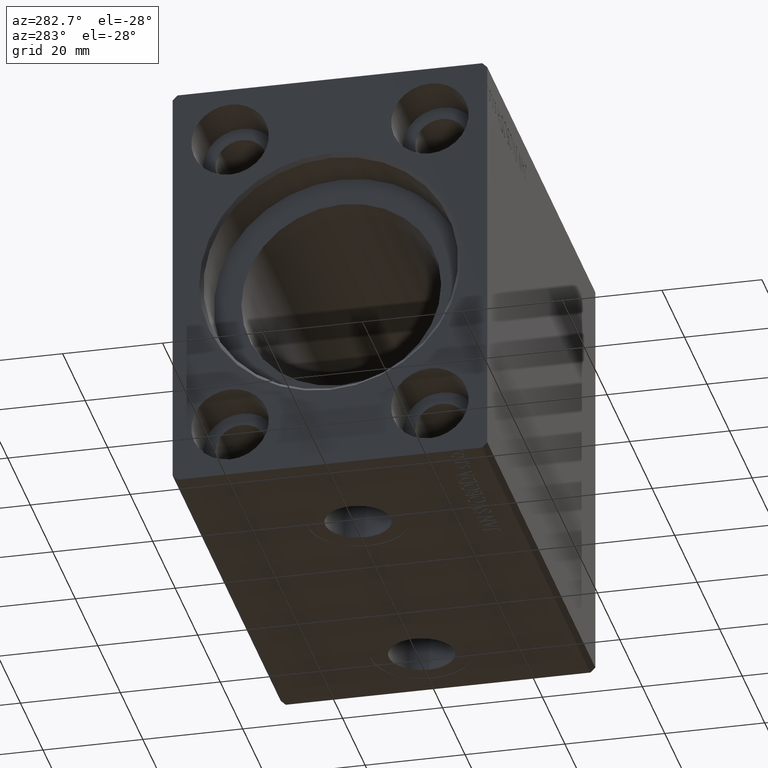
[diagram: clean part render]
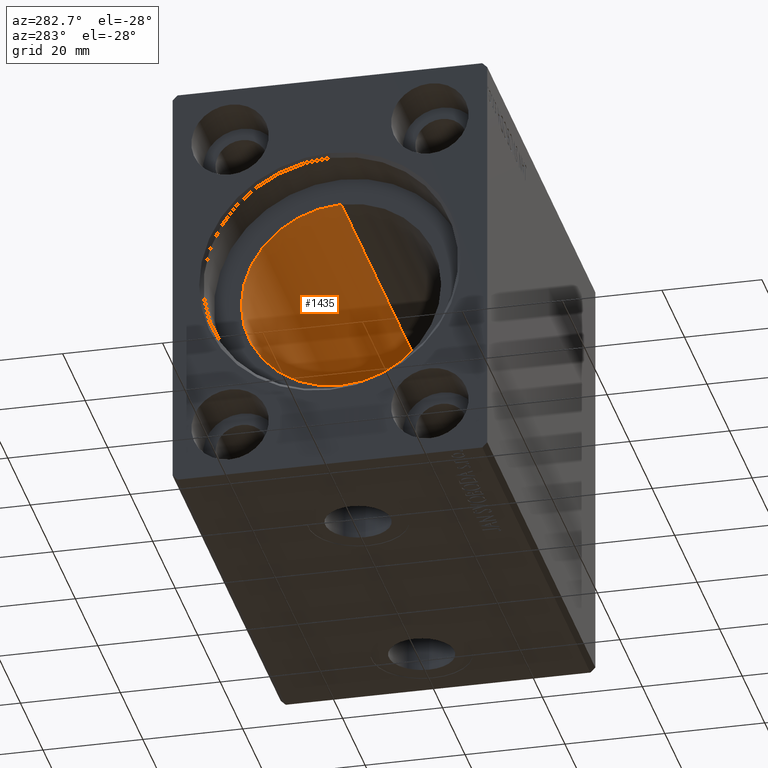
[diagram: same view with one face highlighted and labeled with its STEP entity id]
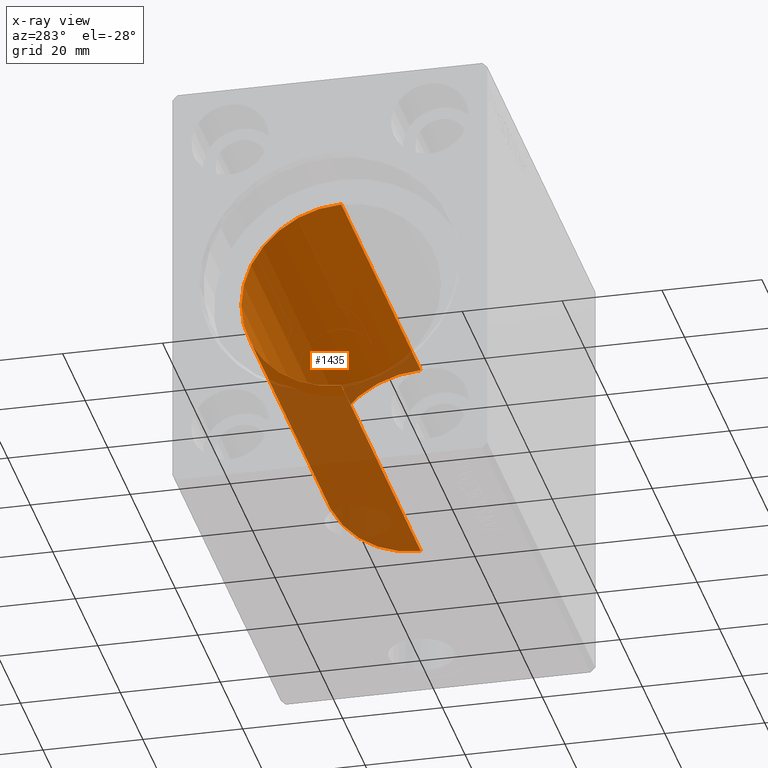
[diagram: x-ray of the same camera — body ghosted, the highlighted face saturated]
A machine part, auxiliary view. The second image highlights one B-rep face of the part: STEP entity #1435.
The next image is the same camera in x-ray: the body ghosted, the highlighted face saturated — about 35% of this face is hidden behind the body in this view.
In plain terms, the highlighted cylindrical surface (partial cylindrical patch) has radius 20 mm, axis along (-1, -0, -0).
Its self-contained STEP definition (entity closure, byte-faithful):
#482 = FACE_OUTER_BOUND ( 'NONE', #22496, .T. ) ;
#992 = CARTESIAN_POINT ( 'NONE',  ( 80.70000000000000284, 0.000000000000000000, 0.000000000000000000 ) ) ;
#1435 = ADVANCED_FACE ( 'NONE', ( #482 ), #7111, .F. ) ;
#3481 = AXIS2_PLACEMENT_3D ( 'NONE', #992, #11501, #21350 ) ;
#3776 = EDGE_CURVE ( 'NONE', #25314, #9583, #10455, .T. ) ;
#4289 = AXIS2_PLACEMENT_3D ( 'NONE', #20939, #30400, #11068 ) ;
#7111 = CYLINDRICAL_SURFACE ( 'NONE', #40688, 20.00000000000000000 ) ;
#8713 = LINE ( 'NONE', #34926, #18242 ) ;
#9583 = VERTEX_POINT ( 'NONE', #15000 ) ;
#9689 = ORIENTED_EDGE ( 'NONE', *, *, #22500, .F. ) ;
#10160 = VERTEX_POINT ( 'NONE', #37205 ) ;
#10455 = CIRCLE ( 'NONE', #4289, 20.00000000000000000 ) ;
#10559 = DIRECTION ( 'NONE',  ( -1.000000000000000000, -0.000000000000000000, -0.000000000000000000 ) ) ;
#11068 = DIRECTION ( 'NONE',  ( 0.000000000000000000, 0.000000000000000000, 1.000000000000000000 ) ) ;
#11501 = DIRECTION ( 'NONE',  ( -1.000000000000000000, 0.000000000000000000, 0.000000000000000000 ) ) ;
#11852 = EDGE_CURVE ( 'NONE', #10160, #32599, #37785, .T. ) ;
#15000 = CARTESIAN_POINT ( 'NONE',  ( 9.999999999999994671, 2.449293598294706513E-15, -20.00000000000000000 ) ) ;
#16893 = CARTESIAN_POINT ( 'NONE',  ( 9.999999999999994671, 0.000000000000000000, 20.00000000000000000 ) ) ;
#17402 = LINE ( 'NONE', #30292, #42055 ) ;
#17405 = DIRECTION ( 'NONE',  ( 0.000000000000000000, 0.000000000000000000, 1.000000000000000000 ) ) ;
#18242 = VECTOR ( 'NONE', #18575, 1000.000000000000000 ) ;
#18575 = DIRECTION ( 'NONE',  ( -1.000000000000000000, -0.000000000000000000, -0.000000000000000000 ) ) ;
#18685 = ORIENTED_EDGE ( 'NONE', *, *, #3776, .T. ) ;
#18899 = CARTESIAN_POINT ( 'NONE',  ( 80.70000000000000284, 2.449293598294706513E-15, -20.00000000000000000 ) ) ;
#20939 = CARTESIAN_POINT ( 'NONE',  ( 9.999999999999994671, 0.000000000000000000, 0.000000000000000000 ) ) ;
#21350 = DIRECTION ( 'NONE',  ( 0.000000000000000000, 0.000000000000000000, 1.000000000000000000 ) ) ;
#22496 = EDGE_LOOP ( 'NONE', ( #9689, #32662, #40934, #18685 ) ) ;
#22500 = EDGE_CURVE ( 'NONE', #32599, #9583, #17402, .T. ) ;
#25314 = VERTEX_POINT ( 'NONE', #16893 ) ;
#26871 = DIRECTION ( 'NONE',  ( -1.000000000000000000, -0.000000000000000000, -0.000000000000000000 ) ) ;
#30292 = CARTESIAN_POINT ( 'NONE',  ( 80.70000000000000284, 2.449293598294706513E-15, -20.00000000000000000 ) ) ;
#30400 = DIRECTION ( 'NONE',  ( -1.000000000000000000, 0.000000000000000000, 0.000000000000000000 ) ) ;
#32599 = VERTEX_POINT ( 'NONE', #18899 ) ;
#32662 = ORIENTED_EDGE ( 'NONE', *, *, #11852, .F. ) ;
#33187 = EDGE_CURVE ( 'NONE', #10160, #25314, #8713, .T. ) ;
#33539 = CARTESIAN_POINT ( 'NONE',  ( 80.70000000000000284, 0.000000000000000000, 0.000000000000000000 ) ) ;
#34926 = CARTESIAN_POINT ( 'NONE',  ( 80.70000000000000284, 0.000000000000000000, 20.00000000000000000 ) ) ;
#37205 = CARTESIAN_POINT ( 'NONE',  ( 80.70000000000000284, 0.000000000000000000, 20.00000000000000000 ) ) ;
#37785 = CIRCLE ( 'NONE', #3481, 20.00000000000000000 ) ;
#40688 = AXIS2_PLACEMENT_3D ( 'NONE', #33539, #10559, #17405 ) ;
#40934 = ORIENTED_EDGE ( 'NONE', *, *, #33187, .T. ) ;
#42055 = VECTOR ( 'NONE', #26871, 1000.000000000000000 ) ;